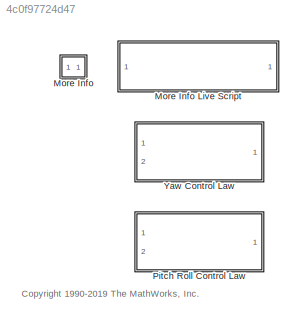
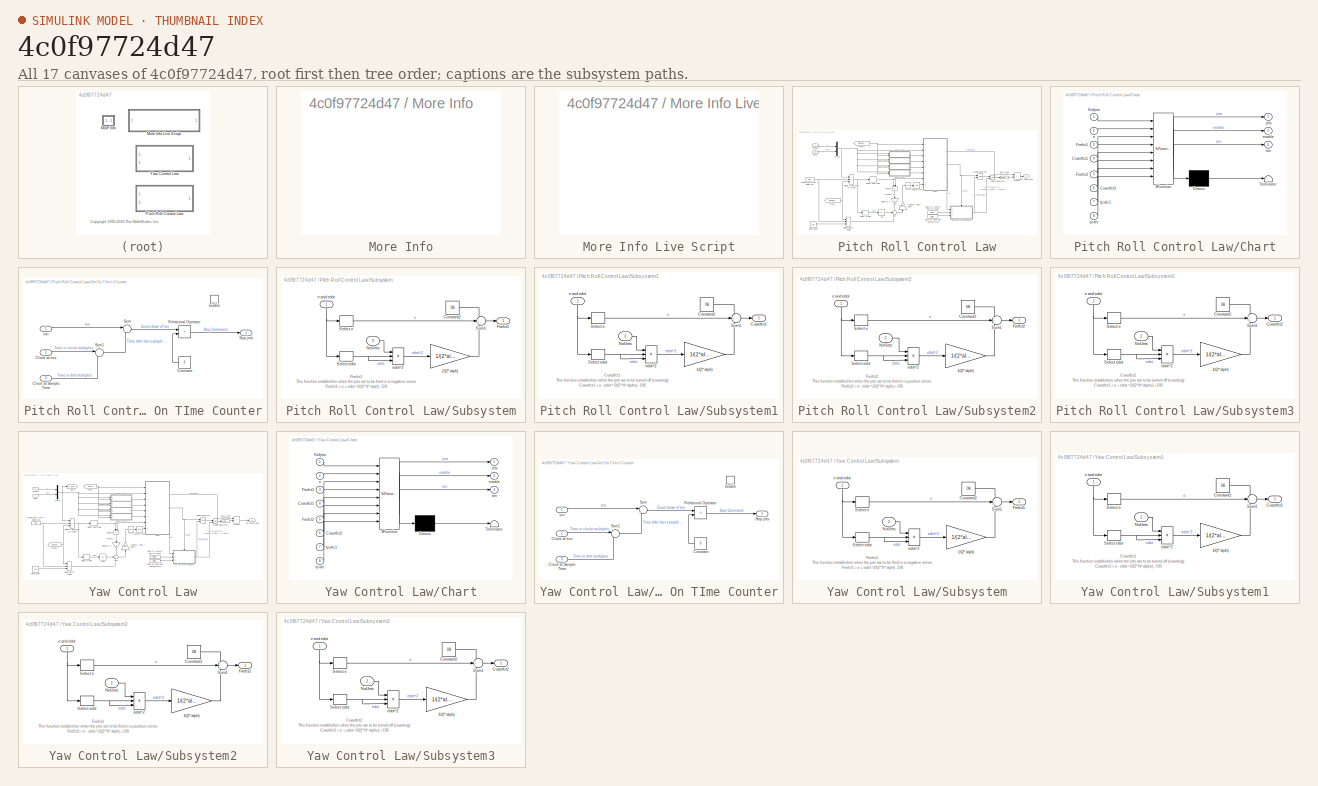
[diagram: thumbnail index - all 17 canvases of the model, root first then tree order]
MODEL slx_4c0f97724d47
KIND library
CONFIG AbsTol = auto
CONFIG EnableMultiTasking = off
CONFIG FixedStep = auto
CONFIG MaxStep = auto
CONFIG MinStep = auto
CONFIG RelTol = 1e-3
CONFIG SampleTimeConstraint = Unconstrained
CONFIG Solver = ode45
CONFIG SolverName = ode45
CONFIG StartTime = 0.0
CONFIG StopTime = 10.0
BLOCK [SubSystem] More Info
  OpenFcn = showdemo('aero_dap3dof')
  Ports = []
  RequestExecContextInheritance = off
BLOCK [SubSystem] More Info Live Script
  OpenFcn = open(fullfile(matlabroot,'toolbox','simulink',...\n    'simdemos','aerospace','aero_dap3dofsetup.mlx'));
  Ports = []
  RequestExecContextInheritance = off
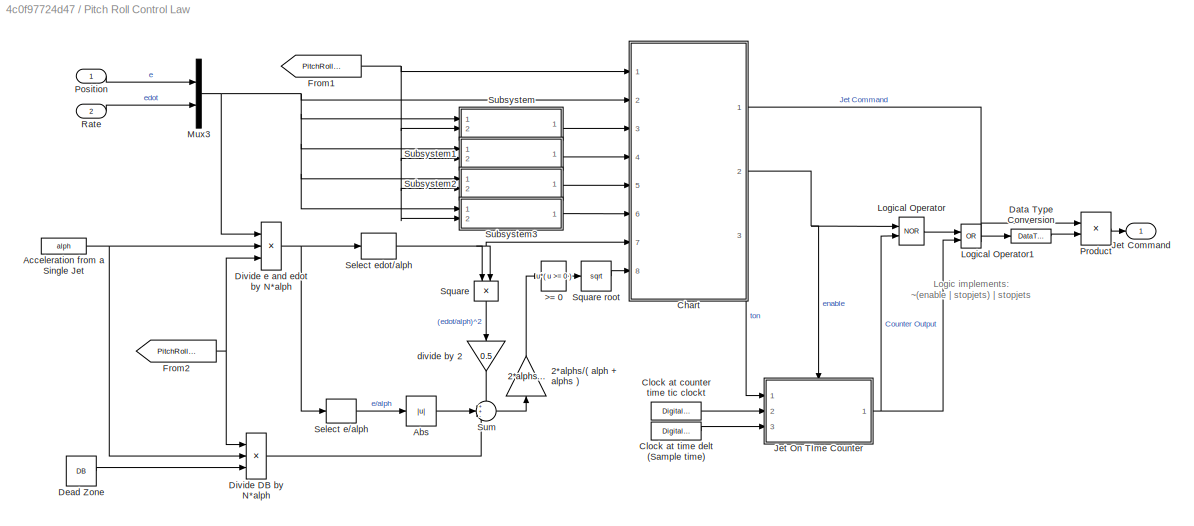
BLOCK [SubSystem] Pitch Roll Control Law
  NameLocation = top
  Ports = [2, 1]
  RequestExecContextInheritance = off
BLOCK [Gain] Pitch Roll Control Law/2*alphs//( alph + alphs )
  Gain = 2*alphs/( alph + alphs )
  OutDataTypeStr = Inherit: Same as input
  ParamDataTypeStr = Inherit: Same as input
  SaturateOnIntegerOverflow = on
BLOCK [Fcn] Pitch Roll Control Law/>= 0
  Expr = u*( u >= 0 )
BLOCK [Abs] Pitch Roll Control Law/Abs
BLOCK [Constant] Pitch Roll Control Law/Acceleration from a Single Jet
  NameLocation = top
  Value = alph
BLOCK [SubSystem] Pitch Roll Control Law/Chart
  ErrorFcn = Stateflow.Translate.translate
  PermitHierarchicalResolution = ExplicitOnly
  Ports = [8, 3]
  RequestExecContextInheritance = off
  SFBlockType = Chart
  TreatAsAtomicUnit = on
BLOCK [Demux] Pitch Roll Control Law/Chart/ Demux 
  Outputs = 1
  Ports = [1, 1]
BLOCK [S-Function] Pitch Roll Control Law/Chart/ SFunction 
  EnableBusSupport = off
  FunctionName = sf_sfun
  Parameters = delt,tmin
  PortCounts = [8 4]
  Ports = [8, 4]
  SFcnIsStateOwnerBlock = off
  SFunctionDeploymentMode = off
  Tag = Stateflow S-Function 1
BLOCK [Terminator] Pitch Roll Control Law/Chart/ Terminator 
BLOCK [Inport] Pitch Roll Control Law/Chart/Coastfct1
  Port = 4
BLOCK [Inport] Pitch Roll Control Law/Chart/Coastfct2
  Port = 6
BLOCK [Inport] Pitch Roll Control Law/Chart/Firefct1
  Port = 3
BLOCK [Inport] Pitch Roll Control Law/Chart/Firefct2
  Port = 5
BLOCK [Inport] Pitch Roll Control Law/Chart/Nofjets
BLOCK [Inport] Pitch Roll Control Law/Chart/e
  Port = 2
BLOCK [Outport] Pitch Roll Control Law/Chart/enable
  Port = 2
  VectorParamsAs1DForOutWhenUnconnected = off
BLOCK [Outport] Pitch Roll Control Law/Chart/jets
  VectorParamsAs1DForOutWhenUnconnected = off
BLOCK [Inport] Pitch Roll Control Law/Chart/tjcalc
  Port = 8
BLOCK [Inport] Pitch Roll Control Law/Chart/tjcalc1
  Port = 7
BLOCK [Outport] Pitch Roll Control Law/Chart/ton
  Port = 3
  VectorParamsAs1DForOutWhenUnconnected = off
BLOCK [DigitalClock] Pitch Roll Control Law/Clock at counter time tic clockt
  NameLocation = top
  SampleTime = clockt
BLOCK [DigitalClock] Pitch Roll Control Law/Clock at time delt (Sample time)
  SampleTime = delt
BLOCK [DataTypeConversion] Pitch Roll Control Law/Data Type Conversion
  OutDataTypeStr = double
  RndMeth = Floor
  SaturateOnIntegerOverflow = off
BLOCK [Constant] Pitch Roll Control Law/Dead Zone
  Value = DB
BLOCK [Product] Pitch Roll Control Law/Divide DB by N*alph
  InputSameDT = on
  Inputs = //*
  OutDataTypeStr = Inherit: Same as first input
  Ports = [3, 1]
  RndMeth = Zero
  SaturateOnIntegerOverflow = on
BLOCK [Product] Pitch Roll Control Law/Divide e and edot by N*alph
  InputSameDT = on
  Inputs = *//
  OutDataTypeStr = Inherit: Same as first input
  Ports = [3, 1]
  RndMeth = Zero
  SaturateOnIntegerOverflow = on
BLOCK [From] Pitch Roll Control Law/From1
  GotoTag = PitchRollJets
  TagVisibility = global
BLOCK [From] Pitch Roll Control Law/From2
  GotoTag = PitchRollJets
  TagVisibility = global
BLOCK [Outport] Pitch Roll Control Law/Jet Command
  InitialOutput = 0
  Unit = lbf
  VectorParamsAs1DForOutWhenUnconnected = off
BLOCK [SubSystem] Pitch Roll Control Law/Jet On TIme Counter
  Ports = [3, 1, 1]
  RequestExecContextInheritance = off
  TreatAsAtomicUnit = on
BLOCK [Inport] Pitch Roll Control Law/Jet On TIme Counter/Clock at Sample Time
  Port = 3
BLOCK [Inport] Pitch Roll Control Law/Jet On TIme Counter/Clock at tics
  Port = 2
BLOCK [Constant] Pitch Roll Control Law/Jet On TIme Counter/Constant
  NameLocation = top
  Value = 0
BLOCK [EnablePort] Pitch Roll Control Law/Jet On TIme Counter/Enable
  Ports = []
  StatesWhenEnabling = reset
BLOCK [RelationalOperator] Pitch Roll Control Law/Jet On TIme Counter/Relational Operator
  Operator = >
  OutDataTypeStr = boolean
  Ports = [2, 1]
BLOCK [Outport] Pitch Roll Control Law/Jet On TIme Counter/Stop jets
  VectorParamsAs1DForOutWhenUnconnected = off
BLOCK [Sum] Pitch Roll Control Law/Jet On TIme Counter/Sum
  InputSameDT = on
  Inputs = |+-
  OutDataTypeStr = Inherit: Same as first input
  Ports = [2, 1]
  SaturateOnIntegerOverflow = on
BLOCK [Sum] Pitch Roll Control Law/Jet On TIme Counter/Sum1
  InputSameDT = on
  Inputs = |+-
  OutDataTypeStr = Inherit: Same as first input
  Ports = [2, 1]
  SaturateOnIntegerOverflow = on
BLOCK [Inport] Pitch Roll Control Law/Jet On TIme Counter/ton
BLOCK [Logic] Pitch Roll Control Law/Logical Operator
  IconShape = distinctive
  Operator = NOR
  OutDataTypeStr = boolean
  Ports = [2, 1]
BLOCK [Logic] Pitch Roll Control Law/Logical Operator1
  IconShape = distinctive
  Operator = OR
  OutDataTypeStr = boolean
  Ports = [2, 1]
BLOCK [Mux] Pitch Roll Control Law/Mux3
  DisplayOption = bar
  Inputs = 2
  Ports = [2, 1]
BLOCK [Inport] Pitch Roll Control Law/Position
  Unit = rad
BLOCK [Product] Pitch Roll Control Law/Product
  InputSameDT = on
  OutDataTypeStr = Inherit: Same as first input
  Ports = [2, 1]
  RndMeth = Zero
  SaturateOnIntegerOverflow = on
BLOCK [Inport] Pitch Roll Control Law/Rate
  Port = 2
  Unit = rad/sec
BLOCK [Selector] Pitch Roll Control Law/Select e//alph
  IndexOptions = Index vector (dialog)
  Indices = [1]
  InputPortWidth = 2
  OutputSizes = 1
  Ports = [1, 1]
BLOCK [Selector] Pitch Roll Control Law/Select edot//alph
  IndexOptions = Index vector (dialog)
  Indices = [2]
  InputPortWidth = 2
  OutputSizes = 1
  Ports = [1, 1]
BLOCK [Product] Pitch Roll Control Law/Square
  InputSameDT = on
  NameLocation = left
  OutDataTypeStr = Inherit: Same as first input
  Ports = [2, 1]
  RndMeth = Zero
  SaturateOnIntegerOverflow = on
BLOCK [Math] Pitch Roll Control Law/Square root
  Operator = sqrt
  Ports = [1, 1]
  SignedPower = on
BLOCK [SubSystem] Pitch Roll Control Law/Subsystem
  Ports = [2, 1]
  RequestExecContextInheritance = off
BLOCK [Gain] Pitch Roll Control Law/Subsystem/1//(2*alph)
  Gain = 1/(2*alph)
  OutDataTypeStr = Inherit: Same as input
  ParamDataTypeStr = Inherit: Same as input
  SaturateOnIntegerOverflow = on
BLOCK [Constant] Pitch Roll Control Law/Subsystem/Constant2
  Value = DB
BLOCK [Outport] Pitch Roll Control Law/Subsystem/Firefct1
  VectorParamsAs1DForOutWhenUnconnected = off
BLOCK [Inport] Pitch Roll Control Law/Subsystem/NofJets
  NameLocation = top
  Port = 2
BLOCK [Selector] Pitch Roll Control Law/Subsystem/Select e
  IndexOptions = Index vector (dialog)
  Indices = [1]
  InputPortWidth = 2
  OutputSizes = 1
  Ports = [1, 1]
BLOCK [Selector] Pitch Roll Control Law/Subsystem/Select edot
  IndexOptions = Index vector (dialog)
  Indices = [2]
  InputPortWidth = 2
  OutputSizes = 1
  Ports = [1, 1]
BLOCK [Sum] Pitch Roll Control Law/Subsystem/Sum1
  InputSameDT = on
  Inputs = -++
  OutDataTypeStr = Inherit: Same as first input
  Ports = [3, 1]
  SaturateOnIntegerOverflow = on
BLOCK [Inport] Pitch Roll Control Law/Subsystem/e and edot
BLOCK [Product] Pitch Roll Control Law/Subsystem/edot^2
  InputSameDT = on
  Inputs = /**
  OutDataTypeStr = Inherit: Same as first input
  Ports = [3, 1]
  RndMeth = Zero
  SaturateOnIntegerOverflow = on
BLOCK [SubSystem] Pitch Roll Control Law/Subsystem1
  Ports = [2, 1]
  RequestExecContextInheritance = off
BLOCK [Gain] Pitch Roll Control Law/Subsystem1/1//(2*alph)
  Gain = 1/(2*alphs)
  OutDataTypeStr = Inherit: Same as input
  ParamDataTypeStr = Inherit: Same as input
  SaturateOnIntegerOverflow = on
BLOCK [Outport] Pitch Roll Control Law/Subsystem1/Coastfct1
  VectorParamsAs1DForOutWhenUnconnected = off
BLOCK [Constant] Pitch Roll Control Law/Subsystem1/Constant2
  Value = DB
BLOCK [Inport] Pitch Roll Control Law/Subsystem1/NofJets
  NameLocation = top
  Port = 2
BLOCK [Selector] Pitch Roll Control Law/Subsystem1/Select e
  IndexOptions = Index vector (dialog)
  Indices = [1]
  InputPortWidth = 2
  OutputSizes = 1
  Ports = [1, 1]
BLOCK [Selector] Pitch Roll Control Law/Subsystem1/Select edot
  IndexOptions = Index vector (dialog)
  Indices = [2]
  InputPortWidth = 2
  OutputSizes = 1
  Ports = [1, 1]
BLOCK [Sum] Pitch Roll Control Law/Subsystem1/Sum1
  InputSameDT = on
  Inputs = -+-
  OutDataTypeStr = Inherit: Same as first input
  Ports = [3, 1]
  SaturateOnIntegerOverflow = on
BLOCK [Inport] Pitch Roll Control Law/Subsystem1/e and edot
BLOCK [Product] Pitch Roll Control Law/Subsystem1/edot^2
  InputSameDT = on
  Inputs = /**
  OutDataTypeStr = Inherit: Same as first input
  Ports = [3, 1]
  RndMeth = Zero
  SaturateOnIntegerOverflow = on
BLOCK [SubSystem] Pitch Roll Control Law/Subsystem2
  Ports = [2, 1]
  RequestExecContextInheritance = off
BLOCK [Gain] Pitch Roll Control Law/Subsystem2/1//(2*alph)
  Gain = 1/(2*alph)
  OutDataTypeStr = Inherit: Same as input
  ParamDataTypeStr = Inherit: Same as input
  SaturateOnIntegerOverflow = on
BLOCK [Constant] Pitch Roll Control Law/Subsystem2/Constant2
  Value = DB
BLOCK [Outport] Pitch Roll Control Law/Subsystem2/Firefct2
  VectorParamsAs1DForOutWhenUnconnected = off
BLOCK [Inport] Pitch Roll Control Law/Subsystem2/NofJets
  NameLocation = top
  Port = 2
BLOCK [Selector] Pitch Roll Control Law/Subsystem2/Select e
  IndexOptions = Index vector (dialog)
  Indices = [1]
  InputPortWidth = 2
  OutputSizes = 1
  Ports = [1, 1]
BLOCK [Selector] Pitch Roll Control Law/Subsystem2/Select edot
  IndexOptions = Index vector (dialog)
  Indices = [2]
  InputPortWidth = 2
  OutputSizes = 1
  Ports = [1, 1]
BLOCK [Sum] Pitch Roll Control Law/Subsystem2/Sum1
  InputSameDT = on
  Inputs = ++-
  OutDataTypeStr = Inherit: Same as first input
  Ports = [3, 1]
  SaturateOnIntegerOverflow = on
BLOCK [Inport] Pitch Roll Control Law/Subsystem2/e and edot
BLOCK [Product] Pitch Roll Control Law/Subsystem2/edot^2
  InputSameDT = on
  Inputs = /**
  OutDataTypeStr = Inherit: Same as first input
  Ports = [3, 1]
  RndMeth = Zero
  SaturateOnIntegerOverflow = on
BLOCK [SubSystem] Pitch Roll Control Law/Subsystem3
  Ports = [2, 1]
  RequestExecContextInheritance = off
BLOCK [Gain] Pitch Roll Control Law/Subsystem3/1//(2*alph)
  Gain = 1/(2*alphs)
  OutDataTypeStr = Inherit: Same as input
  ParamDataTypeStr = Inherit: Same as input
  SaturateOnIntegerOverflow = on
BLOCK [Outport] Pitch Roll Control Law/Subsystem3/Coastfct2
  VectorParamsAs1DForOutWhenUnconnected = off
BLOCK [Constant] Pitch Roll Control Law/Subsystem3/Constant2
  Value = DB
BLOCK [Inport] Pitch Roll Control Law/Subsystem3/NofJets
  NameLocation = top
  Port = 2
BLOCK [Selector] Pitch Roll Control Law/Subsystem3/Select e
  IndexOptions = Index vector (dialog)
  Indices = [1]
  InputPortWidth = 2
  OutputSizes = 1
  Ports = [1, 1]
BLOCK [Selector] Pitch Roll Control Law/Subsystem3/Select edot
  IndexOptions = Index vector (dialog)
  Indices = [2]
  InputPortWidth = 2
  OutputSizes = 1
  Ports = [1, 1]
BLOCK [Sum] Pitch Roll Control Law/Subsystem3/Sum1
  InputSameDT = on
  Inputs = +++
  OutDataTypeStr = Inherit: Same as first input
  Ports = [3, 1]
  SaturateOnIntegerOverflow = on
BLOCK [Inport] Pitch Roll Control Law/Subsystem3/e and edot
BLOCK [Product] Pitch Roll Control Law/Subsystem3/edot^2
  InputSameDT = on
  Inputs = /**
  OutDataTypeStr = Inherit: Same as first input
  Ports = [3, 1]
  RndMeth = Zero
  SaturateOnIntegerOverflow = on
BLOCK [Sum] Pitch Roll Control Law/Sum
  InputSameDT = on
  Inputs = ++-
  OutDataTypeStr = Inherit: Same as first input
  Ports = [3, 1]
  SaturateOnIntegerOverflow = on
BLOCK [Gain] Pitch Roll Control Law/divide by 2
  Gain = 0.5
  NameLocation = left
  OutDataTypeStr = Inherit: Same as input
  ParamDataTypeStr = Inherit: Same as input
  SaturateOnIntegerOverflow = on
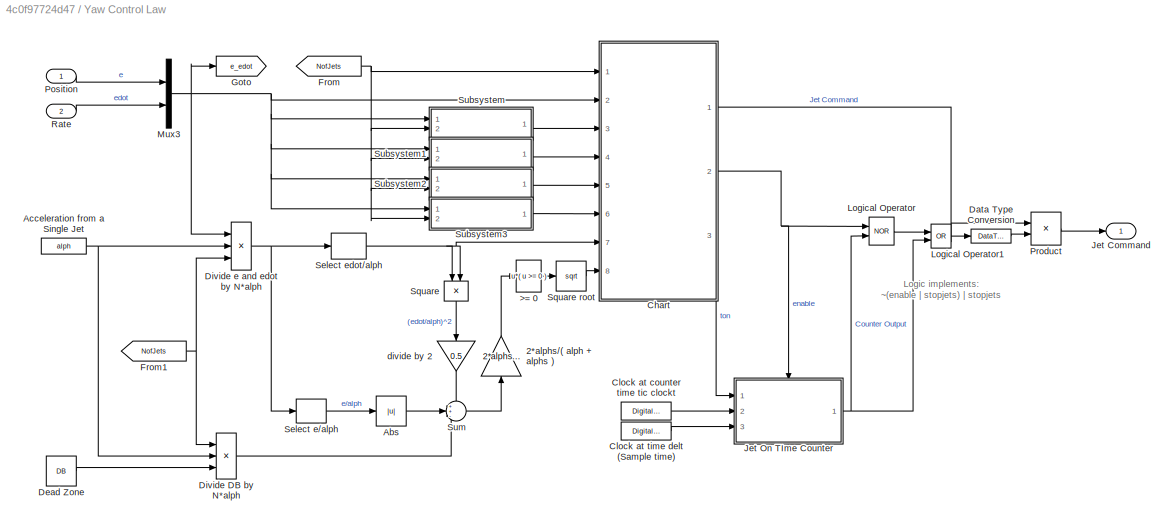
BLOCK [SubSystem] Yaw Control Law
  NameLocation = top
  Ports = [2, 1]
  RequestExecContextInheritance = off
BLOCK [Gain] Yaw Control Law/2*alphs//( alph + alphs )
  Gain = 2*alphs/( alph + alphs )
  OutDataTypeStr = Inherit: Same as input
  ParamDataTypeStr = Inherit: Same as input
  SaturateOnIntegerOverflow = on
BLOCK [Fcn] Yaw Control Law/>= 0
  Expr = u*( u >= 0 )
BLOCK [Abs] Yaw Control Law/Abs
BLOCK [Constant] Yaw Control Law/Acceleration from a Single Jet
  NameLocation = top
  Value = alph
BLOCK [SubSystem] Yaw Control Law/Chart
  ErrorFcn = Stateflow.Translate.translate
  PermitHierarchicalResolution = ExplicitOnly
  Ports = [8, 3]
  RequestExecContextInheritance = off
  SFBlockType = Chart
  TreatAsAtomicUnit = on
BLOCK [Demux] Yaw Control Law/Chart/ Demux 
  Outputs = 1
  Ports = [1, 1]
BLOCK [S-Function] Yaw Control Law/Chart/ SFunction 
  EnableBusSupport = off
  FunctionName = sf_sfun
  Parameters = delt,tmin
  PortCounts = [8 4]
  Ports = [8, 4]
  SFcnIsStateOwnerBlock = off
  SFunctionDeploymentMode = off
  Tag = Stateflow S-Function 4
BLOCK [Terminator] Yaw Control Law/Chart/ Terminator 
BLOCK [Inport] Yaw Control Law/Chart/Coastfct1
  Port = 4
BLOCK [Inport] Yaw Control Law/Chart/Coastfct2
  Port = 6
BLOCK [Inport] Yaw Control Law/Chart/Firefct1
  Port = 3
BLOCK [Inport] Yaw Control Law/Chart/Firefct2
  Port = 5
BLOCK [Inport] Yaw Control Law/Chart/Nofjets
BLOCK [Inport] Yaw Control Law/Chart/e
  Port = 2
BLOCK [Outport] Yaw Control Law/Chart/enable
  Port = 2
  VectorParamsAs1DForOutWhenUnconnected = off
BLOCK [Outport] Yaw Control Law/Chart/jets
  VectorParamsAs1DForOutWhenUnconnected = off
BLOCK [Inport] Yaw Control Law/Chart/tjcalc
  Port = 8
BLOCK [Inport] Yaw Control Law/Chart/tjcalc1
  Port = 7
BLOCK [Outport] Yaw Control Law/Chart/ton
  Port = 3
  VectorParamsAs1DForOutWhenUnconnected = off
BLOCK [DigitalClock] Yaw Control Law/Clock at counter time tic clockt
  NameLocation = top
  SampleTime = clockt
BLOCK [DigitalClock] Yaw Control Law/Clock at time delt (Sample time)
  SampleTime = delt
BLOCK [DataTypeConversion] Yaw Control Law/Data Type Conversion
  OutDataTypeStr = double
  RndMeth = Floor
  SaturateOnIntegerOverflow = off
BLOCK [Constant] Yaw Control Law/Dead Zone
  Value = DB
BLOCK [Product] Yaw Control Law/Divide DB by N*alph
  InputSameDT = on
  Inputs = //*
  OutDataTypeStr = Inherit: Same as first input
  Ports = [3, 1]
  RndMeth = Zero
  SaturateOnIntegerOverflow = on
BLOCK [Product] Yaw Control Law/Divide e and edot by N*alph
  InputSameDT = on
  Inputs = *//
  OutDataTypeStr = Inherit: Same as first input
  Ports = [3, 1]
  RndMeth = Zero
  SaturateOnIntegerOverflow = on
BLOCK [From] Yaw Control Law/From
  GotoTag = NofJets
  TagVisibility = global
BLOCK [From] Yaw Control Law/From1
  GotoTag = NofJets
  TagVisibility = global
BLOCK [Goto] Yaw Control Law/Goto
  GotoTag = e_edot
  TagVisibility = global
BLOCK [Outport] Yaw Control Law/Jet Command
  InitialOutput = 0
  Unit = lbf
  VectorParamsAs1DForOutWhenUnconnected = off
BLOCK [SubSystem] Yaw Control Law/Jet On TIme Counter
  Ports = [3, 1, 1]
  RequestExecContextInheritance = off
  TreatAsAtomicUnit = on
BLOCK [Inport] Yaw Control Law/Jet On TIme Counter/Clock at Sample Time
  Port = 3
BLOCK [Inport] Yaw Control Law/Jet On TIme Counter/Clock at tics
  Port = 2
BLOCK [Constant] Yaw Control Law/Jet On TIme Counter/Constant
  NameLocation = top
  Value = 0
BLOCK [EnablePort] Yaw Control Law/Jet On TIme Counter/Enable
  Ports = []
  StatesWhenEnabling = reset
BLOCK [RelationalOperator] Yaw Control Law/Jet On TIme Counter/Relational Operator
  Operator = >
  OutDataTypeStr = boolean
  Ports = [2, 1]
BLOCK [Outport] Yaw Control Law/Jet On TIme Counter/Stop jets
  VectorParamsAs1DForOutWhenUnconnected = off
BLOCK [Sum] Yaw Control Law/Jet On TIme Counter/Sum
  InputSameDT = on
  Inputs = |+-
  OutDataTypeStr = Inherit: Same as first input
  Ports = [2, 1]
  SaturateOnIntegerOverflow = on
BLOCK [Sum] Yaw Control Law/Jet On TIme Counter/Sum1
  InputSameDT = on
  Inputs = |+-
  OutDataTypeStr = Inherit: Same as first input
  Ports = [2, 1]
  SaturateOnIntegerOverflow = on
BLOCK [Inport] Yaw Control Law/Jet On TIme Counter/ton
BLOCK [Logic] Yaw Control Law/Logical Operator
  IconShape = distinctive
  Operator = NOR
  OutDataTypeStr = boolean
  Ports = [2, 1]
BLOCK [Logic] Yaw Control Law/Logical Operator1
  IconShape = distinctive
  Operator = OR
  OutDataTypeStr = boolean
  Ports = [2, 1]
BLOCK [Mux] Yaw Control Law/Mux3
  DisplayOption = bar
  Inputs = 2
  Ports = [2, 1]
BLOCK [Inport] Yaw Control Law/Position
  Unit = rad
BLOCK [Product] Yaw Control Law/Product
  InputSameDT = on
  OutDataTypeStr = Inherit: Same as first input
  Ports = [2, 1]
  RndMeth = Zero
  SaturateOnIntegerOverflow = on
BLOCK [Inport] Yaw Control Law/Rate
  Port = 2
  Unit = rad/sec
BLOCK [Selector] Yaw Control Law/Select e//alph
  IndexOptions = Index vector (dialog)
  Indices = [1]
  InputPortWidth = 2
  OutputSizes = 1
  Ports = [1, 1]
BLOCK [Selector] Yaw Control Law/Select edot//alph
  IndexOptions = Index vector (dialog)
  Indices = [2]
  InputPortWidth = 2
  OutputSizes = 1
  Ports = [1, 1]
BLOCK [Product] Yaw Control Law/Square
  InputSameDT = on
  NameLocation = left
  OutDataTypeStr = Inherit: Same as first input
  Ports = [2, 1]
  RndMeth = Zero
  SaturateOnIntegerOverflow = on
BLOCK [Math] Yaw Control Law/Square root
  Operator = sqrt
  Ports = [1, 1]
  SignedPower = on
BLOCK [SubSystem] Yaw Control Law/Subsystem
  Ports = [2, 1]
  RequestExecContextInheritance = off
BLOCK [Gain] Yaw Control Law/Subsystem/1//(2*alph)
  Gain = 1/(2*alph)
  OutDataTypeStr = Inherit: Same as input
  ParamDataTypeStr = Inherit: Same as input
  SaturateOnIntegerOverflow = on
BLOCK [Constant] Yaw Control Law/Subsystem/Constant2
  Value = DB
BLOCK [Outport] Yaw Control Law/Subsystem/Firefct1
  VectorParamsAs1DForOutWhenUnconnected = off
BLOCK [Inport] Yaw Control Law/Subsystem/NofJets
  NameLocation = top
  Port = 2
BLOCK [Selector] Yaw Control Law/Subsystem/Select e
  IndexOptions = Index vector (dialog)
  Indices = [1]
  InputPortWidth = 2
  OutputSizes = 1
  Ports = [1, 1]
BLOCK [Selector] Yaw Control Law/Subsystem/Select edot
  IndexOptions = Index vector (dialog)
  Indices = [2]
  InputPortWidth = 2
  OutputSizes = 1
  Ports = [1, 1]
BLOCK [Sum] Yaw Control Law/Subsystem/Sum1
  InputSameDT = on
  Inputs = -++
  OutDataTypeStr = Inherit: Same as first input
  Ports = [3, 1]
  SaturateOnIntegerOverflow = on
BLOCK [Inport] Yaw Control Law/Subsystem/e and edot
BLOCK [Product] Yaw Control Law/Subsystem/edot^2
  InputSameDT = on
  Inputs = /**
  OutDataTypeStr = Inherit: Same as first input
  Ports = [3, 1]
  RndMeth = Zero
  SaturateOnIntegerOverflow = on
BLOCK [SubSystem] Yaw Control Law/Subsystem1
  Ports = [2, 1]
  RequestExecContextInheritance = off
BLOCK [Gain] Yaw Control Law/Subsystem1/1//(2*alph)
  Gain = 1/(2*alphs)
  OutDataTypeStr = Inherit: Same as input
  ParamDataTypeStr = Inherit: Same as input
  SaturateOnIntegerOverflow = on
BLOCK [Outport] Yaw Control Law/Subsystem1/Coastfct1
  VectorParamsAs1DForOutWhenUnconnected = off
BLOCK [Constant] Yaw Control Law/Subsystem1/Constant2
  Value = DB
BLOCK [Inport] Yaw Control Law/Subsystem1/NofJets
  NameLocation = top
  Port = 2
BLOCK [Selector] Yaw Control Law/Subsystem1/Select e
  IndexOptions = Index vector (dialog)
  Indices = [1]
  InputPortWidth = 2
  OutputSizes = 1
  Ports = [1, 1]
BLOCK [Selector] Yaw Control Law/Subsystem1/Select edot
  IndexOptions = Index vector (dialog)
  Indices = [2]
  InputPortWidth = 2
  OutputSizes = 1
  Ports = [1, 1]
BLOCK [Sum] Yaw Control Law/Subsystem1/Sum1
  InputSameDT = on
  Inputs = -+-
  OutDataTypeStr = Inherit: Same as first input
  Ports = [3, 1]
  SaturateOnIntegerOverflow = on
BLOCK [Inport] Yaw Control Law/Subsystem1/e and edot
BLOCK [Product] Yaw Control Law/Subsystem1/edot^2
  InputSameDT = on
  Inputs = /**
  OutDataTypeStr = Inherit: Same as first input
  Ports = [3, 1]
  RndMeth = Zero
  SaturateOnIntegerOverflow = on
BLOCK [SubSystem] Yaw Control Law/Subsystem2
  Ports = [2, 1]
  RequestExecContextInheritance = off
BLOCK [Gain] Yaw Control Law/Subsystem2/1//(2*alph)
  Gain = 1/(2*alph)
  OutDataTypeStr = Inherit: Same as input
  ParamDataTypeStr = Inherit: Same as input
  SaturateOnIntegerOverflow = on
BLOCK [Constant] Yaw Control Law/Subsystem2/Constant2
  Value = DB
BLOCK [Outport] Yaw Control Law/Subsystem2/Firefct2
  VectorParamsAs1DForOutWhenUnconnected = off
BLOCK [Inport] Yaw Control Law/Subsystem2/NofJets
  NameLocation = top
  Port = 2
BLOCK [Selector] Yaw Control Law/Subsystem2/Select e
  IndexOptions = Index vector (dialog)
  Indices = [1]
  InputPortWidth = 2
  OutputSizes = 1
  Ports = [1, 1]
BLOCK [Selector] Yaw Control Law/Subsystem2/Select edot
  IndexOptions = Index vector (dialog)
  Indices = [2]
  InputPortWidth = 2
  OutputSizes = 1
  Ports = [1, 1]
BLOCK [Sum] Yaw Control Law/Subsystem2/Sum1
  InputSameDT = on
  Inputs = ++-
  OutDataTypeStr = Inherit: Same as first input
  Ports = [3, 1]
  SaturateOnIntegerOverflow = on
BLOCK [Inport] Yaw Control Law/Subsystem2/e and edot
BLOCK [Product] Yaw Control Law/Subsystem2/edot^2
  InputSameDT = on
  Inputs = /**
  OutDataTypeStr = Inherit: Same as first input
  Ports = [3, 1]
  RndMeth = Zero
  SaturateOnIntegerOverflow = on
BLOCK [SubSystem] Yaw Control Law/Subsystem3
  Ports = [2, 1]
  RequestExecContextInheritance = off
BLOCK [Gain] Yaw Control Law/Subsystem3/1//(2*alph)
  Gain = 1/(2*alphs)
  OutDataTypeStr = Inherit: Same as input
  ParamDataTypeStr = Inherit: Same as input
  SaturateOnIntegerOverflow = on
BLOCK [Outport] Yaw Control Law/Subsystem3/Coastfct2
  VectorParamsAs1DForOutWhenUnconnected = off
BLOCK [Constant] Yaw Control Law/Subsystem3/Constant2
  Value = DB
BLOCK [Inport] Yaw Control Law/Subsystem3/NofJets
  NameLocation = top
  Port = 2
BLOCK [Selector] Yaw Control Law/Subsystem3/Select e
  IndexOptions = Index vector (dialog)
  Indices = [1]
  InputPortWidth = 2
  OutputSizes = 1
  Ports = [1, 1]
BLOCK [Selector] Yaw Control Law/Subsystem3/Select edot
  IndexOptions = Index vector (dialog)
  Indices = [2]
  InputPortWidth = 2
  OutputSizes = 1
  Ports = [1, 1]
BLOCK [Sum] Yaw Control Law/Subsystem3/Sum1
  InputSameDT = on
  Inputs = +++
  OutDataTypeStr = Inherit: Same as first input
  Ports = [3, 1]
  SaturateOnIntegerOverflow = on
BLOCK [Inport] Yaw Control Law/Subsystem3/e and edot
BLOCK [Product] Yaw Control Law/Subsystem3/edot^2
  InputSameDT = on
  Inputs = /**
  OutDataTypeStr = Inherit: Same as first input
  Ports = [3, 1]
  RndMeth = Zero
  SaturateOnIntegerOverflow = on
BLOCK [Sum] Yaw Control Law/Sum
  InputSameDT = on
  Inputs = ++-
  OutDataTypeStr = Inherit: Same as first input
  Ports = [3, 1]
  SaturateOnIntegerOverflow = on
BLOCK [Gain] Yaw Control Law/divide by 2
  Gain = 0.5
  NameLocation = left
  OutDataTypeStr = Inherit: Same as input
  ParamDataTypeStr = Inherit: Same as input
  SaturateOnIntegerOverflow = on
ANNOTATION (root): <copyright redacted>
ANNOTATION Pitch Roll Control Law: Logic implements: ~(enable | stopjets) | stopjets
ANNOTATION Pitch Roll Control Law/Subsystem: Firefct1 This function establishes when the jets are to be fired in a negative sense Firefct1 = e + edot ^2/(2*N*alph) - DB
ANNOTATION Pitch Roll Control Law/Subsystem1: Coastfct1 This function establishes when the jets are to be turned off (coasting) Coastfct1 = e - edot ^2/(2*N*alphs) - DB
ANNOTATION Pitch Roll Control Law/Subsystem2: Firefct2 This function establishes when the jets are to be fired in a positive sense Firefct2 = e - edot ^2/(2*N*alph) + DB
ANNOTATION Pitch Roll Control Law/Subsystem3: Coastfct2 This function establishes when the jets are to be turned off (coasting) Coastfct1 = e + edot ^2/(2*N*alphs) + DB
ANNOTATION Yaw Control Law: Logic implements: ~(enable | stopjets) | stopjets
ANNOTATION Yaw Control Law/Subsystem: Firefct1 This function establishes when the jets are to be fired in a negative sense Firefct1 = e + edot ^2/(2*N*alph) - DB
ANNOTATION Yaw Control Law/Subsystem1: Coastfct1 This function establishes when the jets are to be turned off (coasting) Coastfct1 = e - edot ^2/(2*N*alphs) - DB
ANNOTATION Yaw Control Law/Subsystem2: Firefct2 This function establishes when the jets are to be fired in a positive sense Firefct2 = e - edot ^2/(2*N*alph) + DB
ANNOTATION Yaw Control Law/Subsystem3: Coastfct2 This function establishes when the jets are to be turned off (coasting) Coastfct1 = e + edot ^2/(2*N*alphs) + DB
LINE Pitch Roll Control Law/2*alphs//( alph + alphs ):1 -> Pitch Roll Control Law/>= 0:1
LINE Pitch Roll Control Law/>= 0:1 -> Pitch Roll Control Law/Square root:1
LINE Pitch Roll Control Law/Abs:1 -> Pitch Roll Control Law/Sum:2
NET Pitch Roll Control Law/Acceleration from a Single Jet:1 -> Pitch Roll Control Law/Divide DB by N*alph:2, Pitch Roll Control Law/Divide e and edot by N*alph:2
LINE Pitch Roll Control Law/Chart:1 -> Pitch Roll Control Law/Product:1
NET Pitch Roll Control Law/Chart:2 -> Pitch Roll Control Law/Jet On TIme Counter:enable, Pitch Roll Control Law/Logical Operator:1
LINE Pitch Roll Control Law/Chart:3 -> Pitch Roll Control Law/Jet On TIme Counter:1
LINE Pitch Roll Control Law/Clock at counter time tic clockt:1 -> Pitch Roll Control Law/Jet On TIme Counter:2
LINE Pitch Roll Control Law/Clock at time delt (Sample time):1 -> Pitch Roll Control Law/Jet On TIme Counter:3
LINE Pitch Roll Control Law/Data Type Conversion:1 -> Pitch Roll Control Law/Product:2
LINE Pitch Roll Control Law/Dead Zone:1 -> Pitch Roll Control Law/Divide DB by N*alph:3
LINE Pitch Roll Control Law/Divide DB by N*alph:1 -> Pitch Roll Control Law/Sum:3
NET Pitch Roll Control Law/Divide e and edot by N*alph:1 -> Pitch Roll Control Law/Select e//alph:1, Pitch Roll Control Law/Select edot//alph:1
NET Pitch Roll Control Law/From1:1 -> Pitch Roll Control Law/Chart:1, Pitch Roll Control Law/Subsystem1:2, Pitch Roll Control Law/Subsystem2:2, Pitch Roll Control Law/Subsystem3:2, Pitch Roll Control Law/Subsystem:2
NET Pitch Roll Control Law/From2:1 -> Pitch Roll Control Law/Divide DB by N*alph:1, Pitch Roll Control Law/Divide e and edot by N*alph:3
LINE Pitch Roll Control Law/Jet On TIme Counter/Clock at Sample Time:1 -> Pitch Roll Control Law/Jet On TIme Counter/Sum1:2
LINE Pitch Roll Control Law/Jet On TIme Counter/Clock at tics:1 -> Pitch Roll Control Law/Jet On TIme Counter/Sum1:1
LINE Pitch Roll Control Law/Jet On TIme Counter/Constant:1 -> Pitch Roll Control Law/Jet On TIme Counter/Relational Operator:2
LINE Pitch Roll Control Law/Jet On TIme Counter/Relational Operator:1 -> Pitch Roll Control Law/Jet On TIme Counter/Stop jets:1
LINE Pitch Roll Control Law/Jet On TIme Counter/Sum1:1 -> Pitch Roll Control Law/Jet On TIme Counter/Sum:2
LINE Pitch Roll Control Law/Jet On TIme Counter/Sum:1 -> Pitch Roll Control Law/Jet On TIme Counter/Relational Operator:1
LINE Pitch Roll Control Law/Jet On TIme Counter/ton:1 -> Pitch Roll Control Law/Jet On TIme Counter/Sum:1
NET Pitch Roll Control Law/Jet On TIme Counter:1 -> Pitch Roll Control Law/Logical Operator1:2, Pitch Roll Control Law/Logical Operator:2
LINE Pitch Roll Control Law/Logical Operator1:1 -> Pitch Roll Control Law/Data Type Conversion:1
LINE Pitch Roll Control Law/Logical Operator:1 -> Pitch Roll Control Law/Logical Operator1:1
NET Pitch Roll Control Law/Mux3:1 -> Pitch Roll Control Law/Chart:2, Pitch Roll Control Law/Divide e and edot by N*alph:1, Pitch Roll Control Law/Subsystem1:1, Pitch Roll Control Law/Subsystem2:1, Pitch Roll Control Law/Subsystem3:1, Pitch Roll Control Law/Subsystem:1
LINE Pitch Roll Control Law/Position:1 -> Pitch Roll Control Law/Mux3:1
LINE Pitch Roll Control Law/Product:1 -> Pitch Roll Control Law/Jet Command:1
LINE Pitch Roll Control Law/Rate:1 -> Pitch Roll Control Law/Mux3:2
LINE Pitch Roll Control Law/Select e//alph:1 -> Pitch Roll Control Law/Abs:1
NET Pitch Roll Control Law/Select edot//alph:1 -> Pitch Roll Control Law/Chart:7, Pitch Roll Control Law/Square:1, Pitch Roll Control Law/Square:2
LINE Pitch Roll Control Law/Square root:1 -> Pitch Roll Control Law/Chart:8
LINE Pitch Roll Control Law/Square:1 -> Pitch Roll Control Law/divide by 2:1
LINE Pitch Roll Control Law/Subsystem/1//(2*alph):1 -> Pitch Roll Control Law/Subsystem/Sum1:3
LINE Pitch Roll Control Law/Subsystem/Constant2:1 -> Pitch Roll Control Law/Subsystem/Sum1:1
LINE Pitch Roll Control Law/Subsystem/NofJets:1 -> Pitch Roll Control Law/Subsystem/edot^2:1
LINE Pitch Roll Control Law/Subsystem/Select e:1 -> Pitch Roll Control Law/Subsystem/Sum1:2
NET Pitch Roll Control Law/Subsystem/Select edot:1 -> Pitch Roll Control Law/Subsystem/edot^2:2, Pitch Roll Control Law/Subsystem/edot^2:3
LINE Pitch Roll Control Law/Subsystem/Sum1:1 -> Pitch Roll Control Law/Subsystem/Firefct1:1
NET Pitch Roll Control Law/Subsystem/e and edot:1 -> Pitch Roll Control Law/Subsystem/Select e:1, Pitch Roll Control Law/Subsystem/Select edot:1
LINE Pitch Roll Control Law/Subsystem/edot^2:1 -> Pitch Roll Control Law/Subsystem/1//(2*alph):1
LINE Pitch Roll Control Law/Subsystem1/1//(2*alph):1 -> Pitch Roll Control Law/Subsystem1/Sum1:3
LINE Pitch Roll Control Law/Subsystem1/Constant2:1 -> Pitch Roll Control Law/Subsystem1/Sum1:1
LINE Pitch Roll Control Law/Subsystem1/NofJets:1 -> Pitch Roll Control Law/Subsystem1/edot^2:1
LINE Pitch Roll Control Law/Subsystem1/Select e:1 -> Pitch Roll Control Law/Subsystem1/Sum1:2
NET Pitch Roll Control Law/Subsystem1/Select edot:1 -> Pitch Roll Control Law/Subsystem1/edot^2:2, Pitch Roll Control Law/Subsystem1/edot^2:3
LINE Pitch Roll Control Law/Subsystem1/Sum1:1 -> Pitch Roll Control Law/Subsystem1/Coastfct1:1
NET Pitch Roll Control Law/Subsystem1/e and edot:1 -> Pitch Roll Control Law/Subsystem1/Select e:1, Pitch Roll Control Law/Subsystem1/Select edot:1
LINE Pitch Roll Control Law/Subsystem1/edot^2:1 -> Pitch Roll Control Law/Subsystem1/1//(2*alph):1
LINE Pitch Roll Control Law/Subsystem1:1 -> Pitch Roll Control Law/Chart:4
LINE Pitch Roll Control Law/Subsystem2/1//(2*alph):1 -> Pitch Roll Control Law/Subsystem2/Sum1:3
LINE Pitch Roll Control Law/Subsystem2/Constant2:1 -> Pitch Roll Control Law/Subsystem2/Sum1:1
LINE Pitch Roll Control Law/Subsystem2/NofJets:1 -> Pitch Roll Control Law/Subsystem2/edot^2:1
LINE Pitch Roll Control Law/Subsystem2/Select e:1 -> Pitch Roll Control Law/Subsystem2/Sum1:2
NET Pitch Roll Control Law/Subsystem2/Select edot:1 -> Pitch Roll Control Law/Subsystem2/edot^2:2, Pitch Roll Control Law/Subsystem2/edot^2:3
LINE Pitch Roll Control Law/Subsystem2/Sum1:1 -> Pitch Roll Control Law/Subsystem2/Firefct2:1
NET Pitch Roll Control Law/Subsystem2/e and edot:1 -> Pitch Roll Control Law/Subsystem2/Select e:1, Pitch Roll Control Law/Subsystem2/Select edot:1
LINE Pitch Roll Control Law/Subsystem2/edot^2:1 -> Pitch Roll Control Law/Subsystem2/1//(2*alph):1
LINE Pitch Roll Control Law/Subsystem2:1 -> Pitch Roll Control Law/Chart:5
LINE Pitch Roll Control Law/Subsystem3/1//(2*alph):1 -> Pitch Roll Control Law/Subsystem3/Sum1:3
LINE Pitch Roll Control Law/Subsystem3/Constant2:1 -> Pitch Roll Control Law/Subsystem3/Sum1:1
LINE Pitch Roll Control Law/Subsystem3/NofJets:1 -> Pitch Roll Control Law/Subsystem3/edot^2:1
LINE Pitch Roll Control Law/Subsystem3/Select e:1 -> Pitch Roll Control Law/Subsystem3/Sum1:2
NET Pitch Roll Control Law/Subsystem3/Select edot:1 -> Pitch Roll Control Law/Subsystem3/edot^2:2, Pitch Roll Control Law/Subsystem3/edot^2:3
LINE Pitch Roll Control Law/Subsystem3/Sum1:1 -> Pitch Roll Control Law/Subsystem3/Coastfct2:1
NET Pitch Roll Control Law/Subsystem3/e and edot:1 -> Pitch Roll Control Law/Subsystem3/Select e:1, Pitch Roll Control Law/Subsystem3/Select edot:1
LINE Pitch Roll Control Law/Subsystem3/edot^2:1 -> Pitch Roll Control Law/Subsystem3/1//(2*alph):1
LINE Pitch Roll Control Law/Subsystem3:1 -> Pitch Roll Control Law/Chart:6
LINE Pitch Roll Control Law/Subsystem:1 -> Pitch Roll Control Law/Chart:3
LINE Pitch Roll Control Law/Sum:1 -> Pitch Roll Control Law/2*alphs//( alph + alphs ):1
LINE Pitch Roll Control Law/divide by 2:1 -> Pitch Roll Control Law/Sum:1
LINE Yaw Control Law/2*alphs//( alph + alphs ):1 -> Yaw Control Law/>= 0:1
LINE Yaw Control Law/>= 0:1 -> Yaw Control Law/Square root:1
LINE Yaw Control Law/Abs:1 -> Yaw Control Law/Sum:2
NET Yaw Control Law/Acceleration from a Single Jet:1 -> Yaw Control Law/Divide DB by N*alph:2, Yaw Control Law/Divide e and edot by N*alph:2
LINE Yaw Control Law/Chart:1 -> Yaw Control Law/Product:1
NET Yaw Control Law/Chart:2 -> Yaw Control Law/Jet On TIme Counter:enable, Yaw Control Law/Logical Operator:1
LINE Yaw Control Law/Chart:3 -> Yaw Control Law/Jet On TIme Counter:1
LINE Yaw Control Law/Clock at counter time tic clockt:1 -> Yaw Control Law/Jet On TIme Counter:2
LINE Yaw Control Law/Clock at time delt (Sample time):1 -> Yaw Control Law/Jet On TIme Counter:3
LINE Yaw Control Law/Data Type Conversion:1 -> Yaw Control Law/Product:2
LINE Yaw Control Law/Dead Zone:1 -> Yaw Control Law/Divide DB by N*alph:3
LINE Yaw Control Law/Divide DB by N*alph:1 -> Yaw Control Law/Sum:3
NET Yaw Control Law/Divide e and edot by N*alph:1 -> Yaw Control Law/Select e//alph:1, Yaw Control Law/Select edot//alph:1
NET Yaw Control Law/From1:1 -> Yaw Control Law/Divide DB by N*alph:1, Yaw Control Law/Divide e and edot by N*alph:3
NET Yaw Control Law/From:1 -> Yaw Control Law/Chart:1, Yaw Control Law/Subsystem1:2, Yaw Control Law/Subsystem2:2, Yaw Control Law/Subsystem3:2, Yaw Control Law/Subsystem:2
LINE Yaw Control Law/Jet On TIme Counter/Clock at Sample Time:1 -> Yaw Control Law/Jet On TIme Counter/Sum1:2
LINE Yaw Control Law/Jet On TIme Counter/Clock at tics:1 -> Yaw Control Law/Jet On TIme Counter/Sum1:1
LINE Yaw Control Law/Jet On TIme Counter/Constant:1 -> Yaw Control Law/Jet On TIme Counter/Relational Operator:2
LINE Yaw Control Law/Jet On TIme Counter/Relational Operator:1 -> Yaw Control Law/Jet On TIme Counter/Stop jets:1
LINE Yaw Control Law/Jet On TIme Counter/Sum1:1 -> Yaw Control Law/Jet On TIme Counter/Sum:2
LINE Yaw Control Law/Jet On TIme Counter/Sum:1 -> Yaw Control Law/Jet On TIme Counter/Relational Operator:1
LINE Yaw Control Law/Jet On TIme Counter/ton:1 -> Yaw Control Law/Jet On TIme Counter/Sum:1
NET Yaw Control Law/Jet On TIme Counter:1 -> Yaw Control Law/Logical Operator1:2, Yaw Control Law/Logical Operator:2
LINE Yaw Control Law/Logical Operator1:1 -> Yaw Control Law/Data Type Conversion:1
LINE Yaw Control Law/Logical Operator:1 -> Yaw Control Law/Logical Operator1:1
NET Yaw Control Law/Mux3:1 -> Yaw Control Law/Chart:2, Yaw Control Law/Divide e and edot by N*alph:1, Yaw Control Law/Goto:1, Yaw Control Law/Subsystem1:1, Yaw Control Law/Subsystem2:1, Yaw Control Law/Subsystem3:1, Yaw Control Law/Subsystem:1
LINE Yaw Control Law/Position:1 -> Yaw Control Law/Mux3:1
LINE Yaw Control Law/Product:1 -> Yaw Control Law/Jet Command:1
LINE Yaw Control Law/Rate:1 -> Yaw Control Law/Mux3:2
LINE Yaw Control Law/Select e//alph:1 -> Yaw Control Law/Abs:1
NET Yaw Control Law/Select edot//alph:1 -> Yaw Control Law/Chart:7, Yaw Control Law/Square:1, Yaw Control Law/Square:2
LINE Yaw Control Law/Square root:1 -> Yaw Control Law/Chart:8
LINE Yaw Control Law/Square:1 -> Yaw Control Law/divide by 2:1
LINE Yaw Control Law/Subsystem/1//(2*alph):1 -> Yaw Control Law/Subsystem/Sum1:3
LINE Yaw Control Law/Subsystem/Constant2:1 -> Yaw Control Law/Subsystem/Sum1:1
LINE Yaw Control Law/Subsystem/NofJets:1 -> Yaw Control Law/Subsystem/edot^2:1
LINE Yaw Control Law/Subsystem/Select e:1 -> Yaw Control Law/Subsystem/Sum1:2
NET Yaw Control Law/Subsystem/Select edot:1 -> Yaw Control Law/Subsystem/edot^2:2, Yaw Control Law/Subsystem/edot^2:3
LINE Yaw Control Law/Subsystem/Sum1:1 -> Yaw Control Law/Subsystem/Firefct1:1
NET Yaw Control Law/Subsystem/e and edot:1 -> Yaw Control Law/Subsystem/Select e:1, Yaw Control Law/Subsystem/Select edot:1
LINE Yaw Control Law/Subsystem/edot^2:1 -> Yaw Control Law/Subsystem/1//(2*alph):1
LINE Yaw Control Law/Subsystem1/1//(2*alph):1 -> Yaw Control Law/Subsystem1/Sum1:3
LINE Yaw Control Law/Subsystem1/Constant2:1 -> Yaw Control Law/Subsystem1/Sum1:1
LINE Yaw Control Law/Subsystem1/NofJets:1 -> Yaw Control Law/Subsystem1/edot^2:1
LINE Yaw Control Law/Subsystem1/Select e:1 -> Yaw Control Law/Subsystem1/Sum1:2
NET Yaw Control Law/Subsystem1/Select edot:1 -> Yaw Control Law/Subsystem1/edot^2:2, Yaw Control Law/Subsystem1/edot^2:3
LINE Yaw Control Law/Subsystem1/Sum1:1 -> Yaw Control Law/Subsystem1/Coastfct1:1
NET Yaw Control Law/Subsystem1/e and edot:1 -> Yaw Control Law/Subsystem1/Select e:1, Yaw Control Law/Subsystem1/Select edot:1
LINE Yaw Control Law/Subsystem1/edot^2:1 -> Yaw Control Law/Subsystem1/1//(2*alph):1
LINE Yaw Control Law/Subsystem1:1 -> Yaw Control Law/Chart:4
LINE Yaw Control Law/Subsystem2/1//(2*alph):1 -> Yaw Control Law/Subsystem2/Sum1:3
LINE Yaw Control Law/Subsystem2/Constant2:1 -> Yaw Control Law/Subsystem2/Sum1:1
LINE Yaw Control Law/Subsystem2/NofJets:1 -> Yaw Control Law/Subsystem2/edot^2:1
LINE Yaw Control Law/Subsystem2/Select e:1 -> Yaw Control Law/Subsystem2/Sum1:2
NET Yaw Control Law/Subsystem2/Select edot:1 -> Yaw Control Law/Subsystem2/edot^2:2, Yaw Control Law/Subsystem2/edot^2:3
LINE Yaw Control Law/Subsystem2/Sum1:1 -> Yaw Control Law/Subsystem2/Firefct2:1
NET Yaw Control Law/Subsystem2/e and edot:1 -> Yaw Control Law/Subsystem2/Select e:1, Yaw Control Law/Subsystem2/Select edot:1
LINE Yaw Control Law/Subsystem2/edot^2:1 -> Yaw Control Law/Subsystem2/1//(2*alph):1
LINE Yaw Control Law/Subsystem2:1 -> Yaw Control Law/Chart:5
LINE Yaw Control Law/Subsystem3/1//(2*alph):1 -> Yaw Control Law/Subsystem3/Sum1:3
LINE Yaw Control Law/Subsystem3/Constant2:1 -> Yaw Control Law/Subsystem3/Sum1:1
LINE Yaw Control Law/Subsystem3/NofJets:1 -> Yaw Control Law/Subsystem3/edot^2:1
LINE Yaw Control Law/Subsystem3/Select e:1 -> Yaw Control Law/Subsystem3/Sum1:2
NET Yaw Control Law/Subsystem3/Select edot:1 -> Yaw Control Law/Subsystem3/edot^2:2, Yaw Control Law/Subsystem3/edot^2:3
LINE Yaw Control Law/Subsystem3/Sum1:1 -> Yaw Control Law/Subsystem3/Coastfct2:1
NET Yaw Control Law/Subsystem3/e and edot:1 -> Yaw Control Law/Subsystem3/Select e:1, Yaw Control Law/Subsystem3/Select edot:1
LINE Yaw Control Law/Subsystem3/edot^2:1 -> Yaw Control Law/Subsystem3/1//(2*alph):1
LINE Yaw Control Law/Subsystem3:1 -> Yaw Control Law/Chart:6
LINE Yaw Control Law/Subsystem:1 -> Yaw Control Law/Chart:3
LINE Yaw Control Law/Sum:1 -> Yaw Control Law/2*alphs//( alph + alphs ):1
LINE Yaw Control Law/divide by 2:1 -> Yaw Control Law/Sum:1
note: NET lines group one-source signal fan-out (src -> all destinations, sorted); 1:1 wires keep LINE
CHART Pitch Roll Control Law/Chart states=8 transitions=23
  STATE_LABEL 'Wait_for_stable_rate'
  STATE_LABEL 'Start'
  STATE_LABEL 'Fire_region_1\nen: jets=-Nofjets;\nton=tjcalc+tjcalc1;'
  STATE_LABEL 'Coast_region_2\nen: jets=0;\nton=0;\nenable=0;'
  STATE_LABEL 'Skip_a_Sample_2\nen:count--;'
  STATE_LABEL 'Skip_a_Sample_1\nen:count--;'
  STATE_LABEL 'Coast_region_1\nen: jets=0;\nton=0;\nenable=0;'
  STATE_LABEL 'Fire_region_2\nen: jets=Nofjets;\nton=tjcalc-tjcalc1;'
CHART Yaw Control Law/Chart states=8 transitions=23
  STATE_LABEL 'Wait_for_stable_rate'
  STATE_LABEL 'Start'
  STATE_LABEL 'Fire_region_1\nen: jets=-Nofjets;\nton=tjcalc+tjcalc1;'
  STATE_LABEL 'Coast_region_2\nen: jets=0;\nton=0;\nenable=0;'
  STATE_LABEL 'Skip_a_Sample_2\nen:count--;'
  STATE_LABEL 'Skip_a_Sample_1\nen:count--;'
  STATE_LABEL 'Coast_region_1\nen: jets=0;\nton=0;\nenable=0;'
  STATE_LABEL 'Fire_region_2\nen: jets=Nofjets;\nton=tjcalc-tjcalc1;'
CHART  states=0 transitions=0
CHART  states=0 transitions=0
